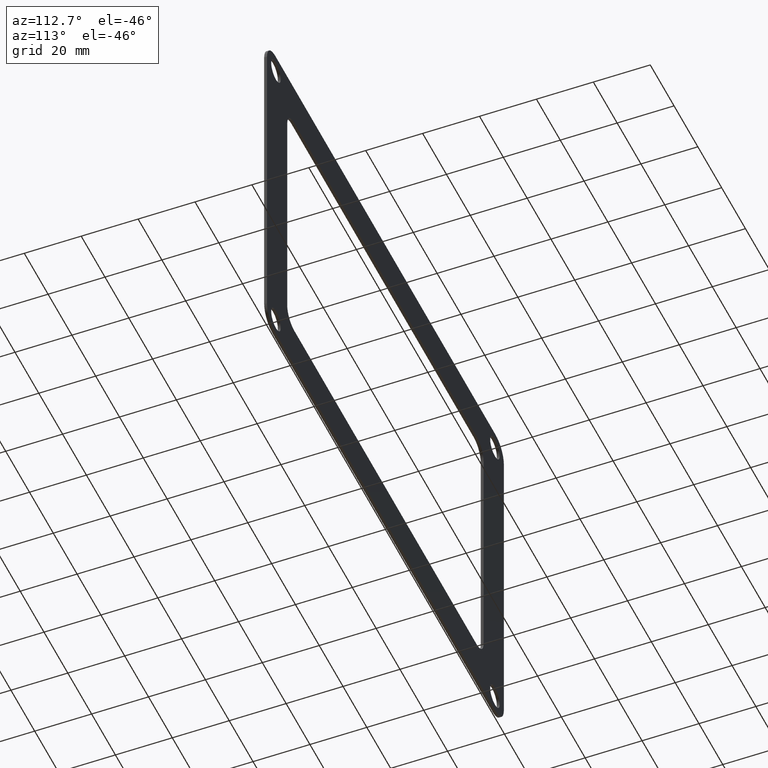
[diagram: clean part render]
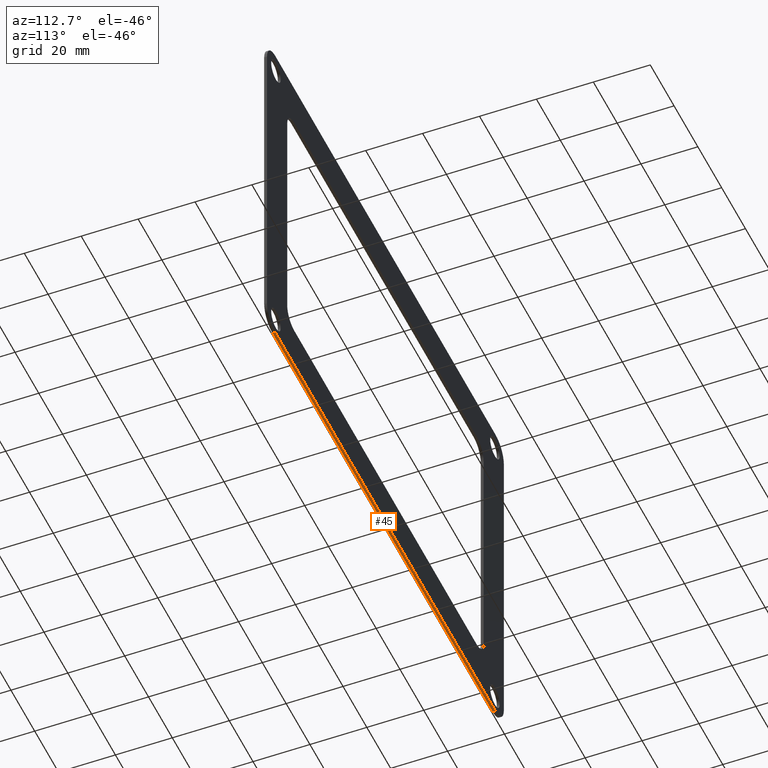
[diagram: same view with one face highlighted and labeled with its STEP entity id]
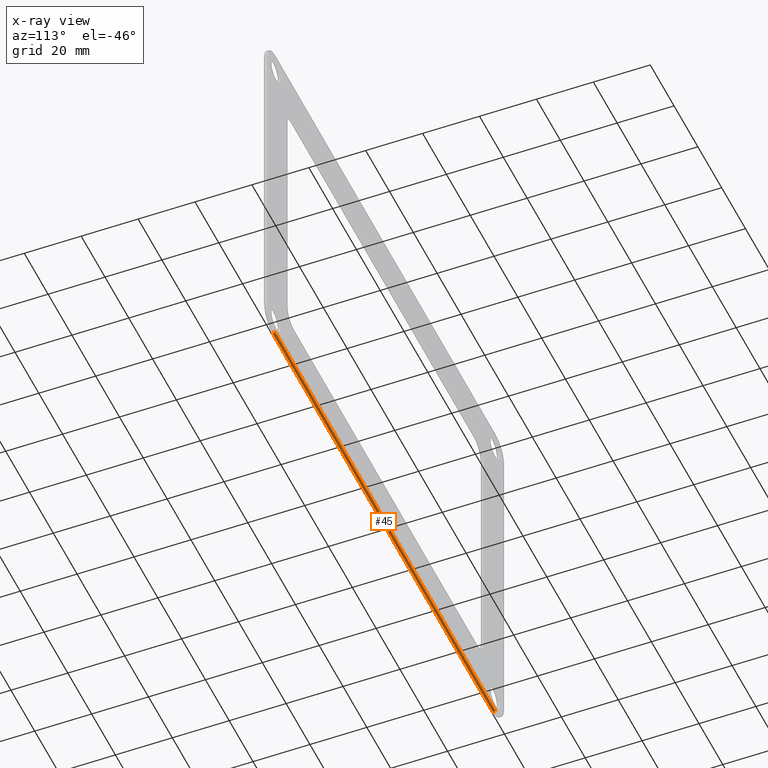
[diagram: x-ray of the same camera — body ghosted, the highlighted face saturated]
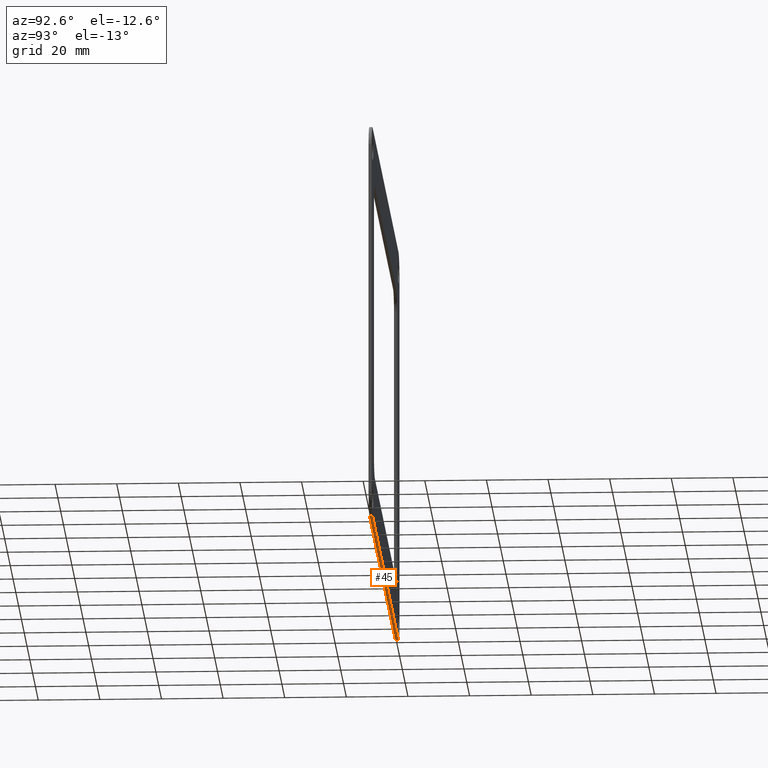
[diagram: same view with one face highlighted and labeled with its STEP entity id]
A machine part, auxiliary view. The second image highlights one B-rep face of the part: STEP entity #45.
The next image is the same camera in x-ray: the body ghosted, the highlighted face saturated — about 0% of this face is hidden behind the body in this view.
A second angle (auxiliary view) of the same face is appended — the face is thin or edge-on in the first view.
In plain terms, the highlighted planar face has unit normal (0, 0, -1).
Its self-contained STEP definition (entity closure, byte-faithful):
#45=ADVANCED_FACE('',(#127),#126,.T.);
#126=PLANE('',#374);
#127=FACE_OUTER_BOUND('',#375,.T.);
#371=CARTESIAN_POINT('',(1.02500000000E+002,-1.10000000000E+000,-6.45000000000E+001));
#372=DIRECTION('',(0.00000000000E+000,0.00000000000E+000,-1.00000000000E+000));
#373=DIRECTION('',(-1.00000000000E+000,0.00000000000E+000,0.00000000000E+000));
#374=AXIS2_PLACEMENT_3D('',#371,#372,#373);
#375=EDGE_LOOP('',(#536,#537,#538,#539));
#536=ORIENTED_EDGE('',*,*,#623,.F.);
#537=ORIENTED_EDGE('',*,*,#671,.F.);
#538=ORIENTED_EDGE('',*,*,#649,.T.);
#539=ORIENTED_EDGE('',*,*,#672,.T.);
#623=EDGE_CURVE('',#707,#714,#715,.T.);
#649=EDGE_CURVE('',#896,#889,#897,.T.);
#671=EDGE_CURVE('',#896,#707,#1046,.T.);
#672=EDGE_CURVE('',#889,#714,#1052,.T.);
#707=VERTEX_POINT('',#1182);
#714=VERTEX_POINT('',#1187);
#715=LINE('',#1188,#1189);
#889=VERTEX_POINT('',#1303);
#896=VERTEX_POINT('',#1308);
#897=LINE('',#1309,#1310);
#1046=LINE('',#1405,#1406);
#1052=LINE('',#1408,#1409);
#1182=CARTESIAN_POINT('',(-9.25000000000E+001,-1.00000000000E+000,-6.45000000000E+001));
#1187=CARTESIAN_POINT('',(9.25000000000E+001,-1.00000000000E+000,-6.45000000000E+001));
#1188=CARTESIAN_POINT('',(-9.25000000000E+001,-1.00000000000E+000,-6.45000000000E+001));
#1189=VECTOR('',#1190,1.85000000000E+002);
#1190=DIRECTION('',(1.00000000000E+000,0.00000000000E+000,0.00000000000E+000));
#1303=CARTESIAN_POINT('',(9.25000000000E+001,0.00000000000E+000,-6.45000000000E+001));
#1308=CARTESIAN_POINT('',(-9.25000000000E+001,0.00000000000E+000,-6.45000000000E+001));
#1309=CARTESIAN_POINT('',(-9.25000000000E+001,0.00000000000E+000,-6.45000000000E+001));
#1310=VECTOR('',#1311,1.85000000000E+002);
#1311=DIRECTION('',(1.00000000000E+000,0.00000000000E+000,0.00000000000E+000));
#1405=CARTESIAN_POINT('',(-9.25000000000E+001,0.00000000000E+000,-6.45000000000E+001));
#1406=VECTOR('',#1407,1.00000000000E+000);
#1407=DIRECTION('',(0.00000000000E+000,-1.00000000000E+000,0.00000000000E+000));
#1408=CARTESIAN_POINT('',(9.25000000000E+001,0.00000000000E+000,-6.45000000000E+001));
#1409=VECTOR('',#1410,1.00000000000E+000);
#1410=DIRECTION('',(0.00000000000E+000,-1.00000000000E+000,0.00000000000E+000));